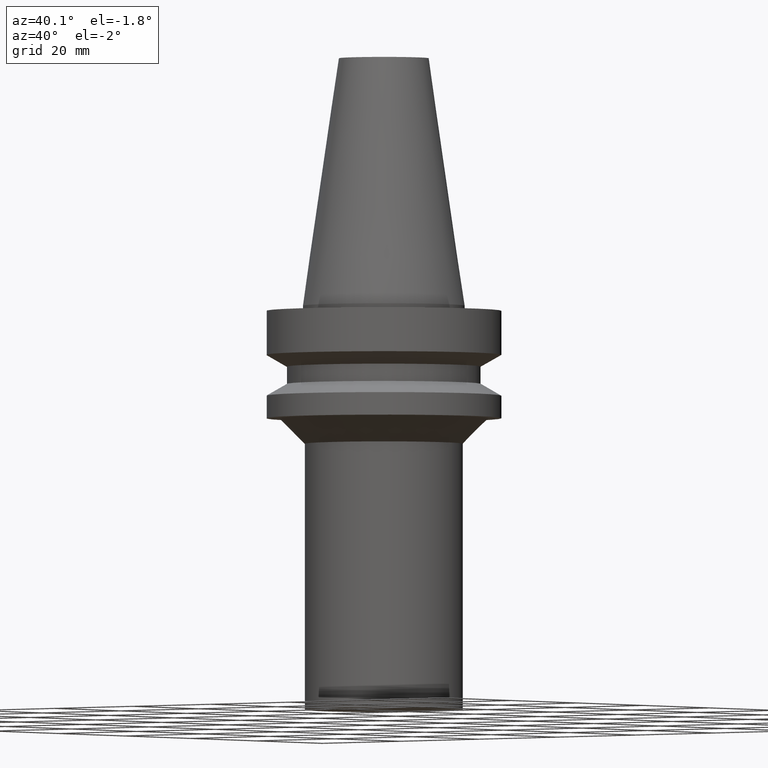
[diagram: clean part render]
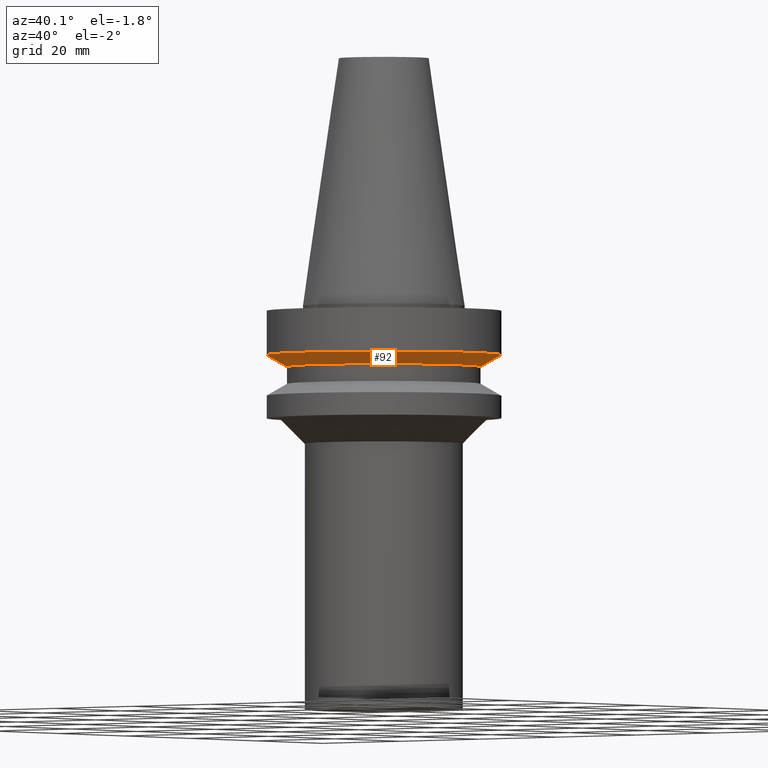
[diagram: same view with one face highlighted and labeled with its STEP entity id]
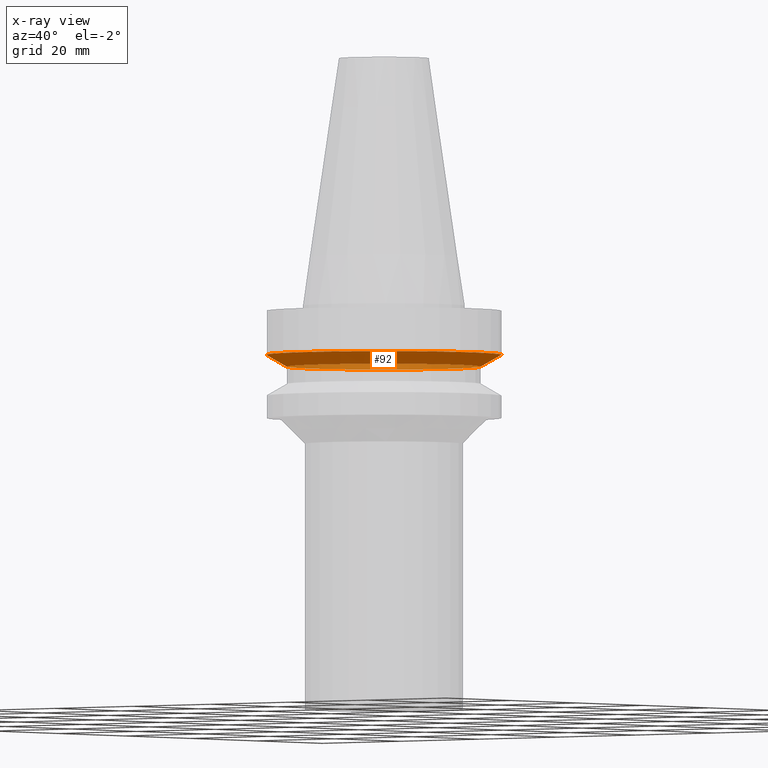
[diagram: x-ray of the same camera — body ghosted, the highlighted face saturated]
A machine part, auxiliary view. The second image highlights one B-rep face of the part: STEP entity #92.
The next image is the same camera in x-ray: the body ghosted, the highlighted face saturated — about 25% of this face is hidden behind the body in this view.
In plain terms, the highlighted conical surface has half-angle 60 deg.
Its self-contained STEP definition (entity closure, byte-faithful):
#76=EDGE_CURVE('Unnamed[1]',#172,#172,#173,.T.);
#92=ADVANCED_FACE('Unnamed[1]',(#197,#198),#199,.T.);
#109=EDGE_CURVE('Unnamed[1]',#224,#224,#225,.T.);
#172=VERTEX_POINT('',#290);
#173=CIRCLE('',#291,19.0);
#197=FACE_BOUND('',#321,.T.);
#198=FACE_BOUND('',#322,.T.);
#199=CONICAL_SURFACE('',#323,21.0,1.04719755058881);
#224=VERTEX_POINT('',#355);
#225=CIRCLE('',#356,23.0);
#290=CARTESIAN_POINT('',(2.64441825770234E-015,19.0,-11.90940108));
#291=AXIS2_PLACEMENT_3D('',#410,#411,#412);
#321=EDGE_LOOP('',(#438));
#322=EDGE_LOOP('',(#439));
#323=AXIS2_PLACEMENT_3D('',#440,#441,#442);
#355=CARTESIAN_POINT('',(2.1316282072803E-015,23.0,-9.59999999999999));
#356=AXIS2_PLACEMENT_3D('',#469,#470,#471);
#410=CARTESIAN_POINT('',(2.64441825770234E-015,1.4584809912384E-015,-11.90940108));
#411=DIRECTION('',(2.22044604925031E-016,1.22464679914735E-016,-1.0));
#412=DIRECTION('',(-6.16297582203915E-033,1.0,1.22464679914735E-016));
#438=ORIENTED_EDGE('',*,*,#76,.F.);
#439=ORIENTED_EDGE('',*,*,#109,.T.);
#440=CARTESIAN_POINT('',(2.38802323249132E-015,1.31707095920993E-015,-10.75470054));
#441=DIRECTION('',(-2.22044604925031E-016,-1.22464679914735E-016,1.0));
#442=DIRECTION('',(-6.16297582203915E-033,1.0,1.22464679914735E-016));
#469=CARTESIAN_POINT('',(2.1316282072803E-015,1.17566092718146E-015,-9.59999999999999));
#470=DIRECTION('',(2.22044604925031E-016,1.22464679914735E-016,-1.0));
#471=DIRECTION('',(-6.16297582203915E-033,1.0,1.22464679914735E-016));